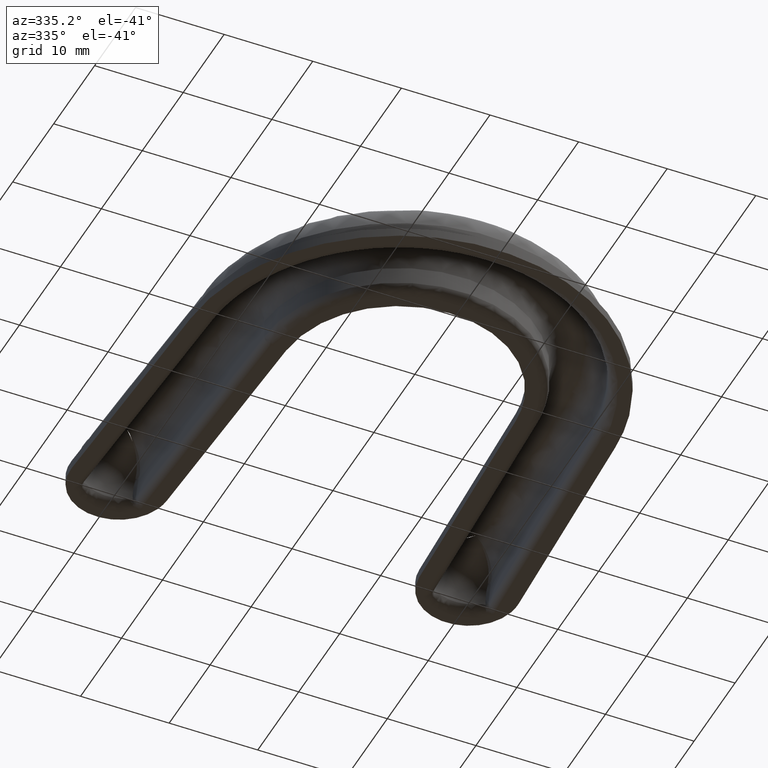
[diagram: clean part render]
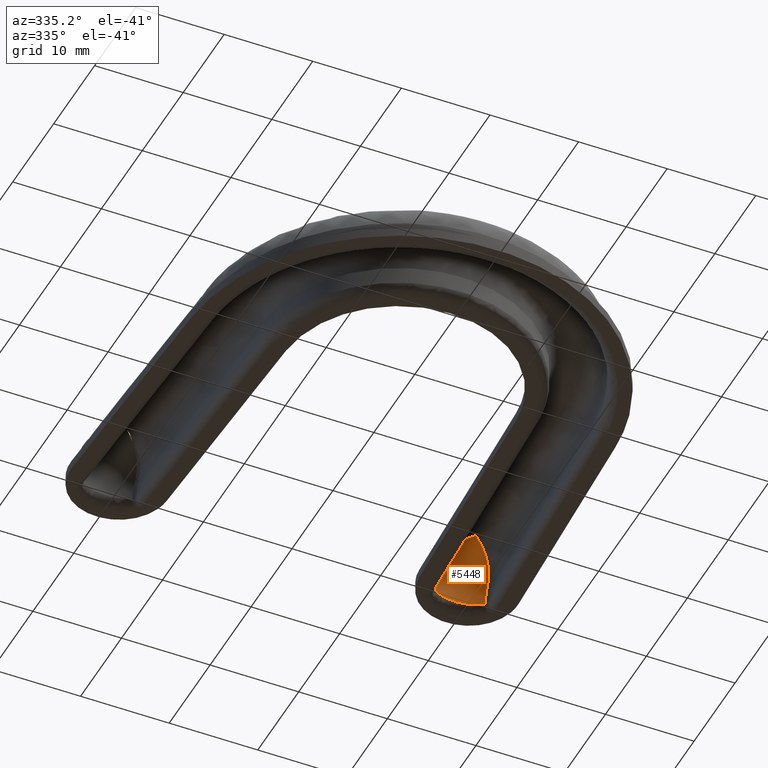
[diagram: same view with one face highlighted and labeled with its STEP entity id]
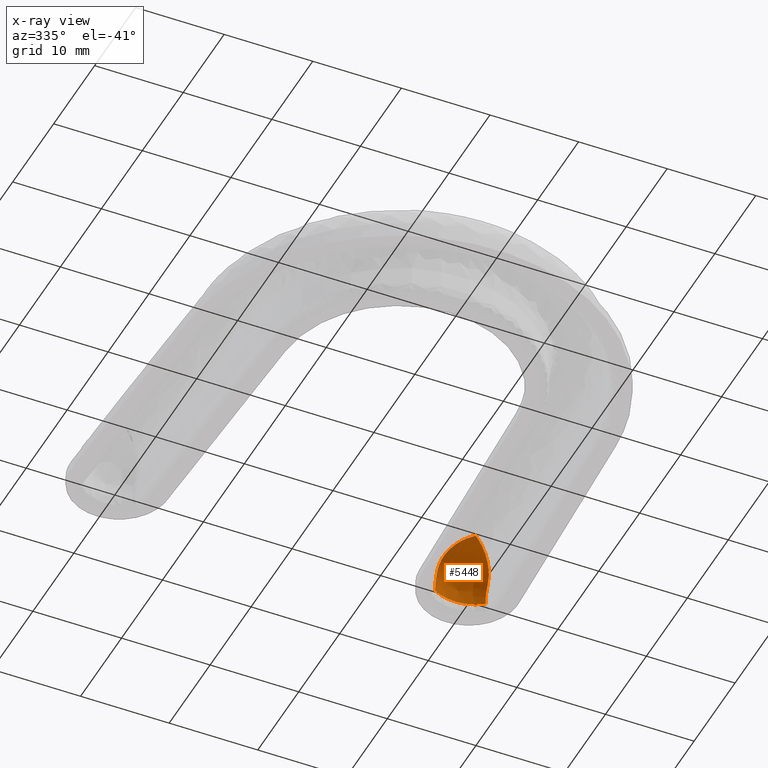
[diagram: x-ray of the same camera — body ghosted, the highlighted face saturated]
A machine part, auxiliary view. The second image highlights one B-rep face of the part: STEP entity #5448.
The next image is the same camera in x-ray: the body ghosted, the highlighted face saturated — about 5% of this face is hidden behind the body in this view.
In plain terms, the highlighted face is a freeform B-spline surface patch.
Its self-contained STEP definition (entity closure, byte-faithful):
#373=CARTESIAN_POINT('',(17.076787218034301,51.995188337450799,1.000000000000016));
#374=VERTEX_POINT('',#373);
#503=CARTESIAN_POINT('',(22.625344964215451,51.716061540061197,1.000000000000090));
#504=VERTEX_POINT('',#503);
#518=CARTESIAN_POINT('',(17.076787218034280,51.995188337450820,1.000000000000016));
#519=CARTESIAN_POINT('',(19.944316262237688,53.709276985422633,1.000000000000016));
#520=CARTESIAN_POINT('',(22.625344964215461,51.716061540061212,1.000000000000016));
#528=(BOUNDED_CURVE()B_SPLINE_CURVE(2,(#518,#519,#520),.UNSPECIFIED.,.F.,.U.)CURVE()GEOMETRIC_REPRESENTATION_ITEM()QUASI_UNIFORM_CURVE()RATIONAL_B_SPLINE_CURVE((1.0,0.831478172703721,1.0))REPRESENTATION_ITEM(''));
#529=EDGE_CURVE('',#374,#504,#528,.T.);
#777=CARTESIAN_POINT('',(22.594604190664551,51.071713526645397,3.222222222222310));
#778=VERTEX_POINT('',#777);
#779=CARTESIAN_POINT('',(22.625344964215440,51.716061540061261,1.000000000000090));
#780=CARTESIAN_POINT('',(22.625344964215444,51.716061540061261,2.204740216560281));
#781=CARTESIAN_POINT('',(22.594604190664558,51.071713526645418,3.222222222222321));
#789=(BOUNDED_CURVE()B_SPLINE_CURVE(2,(#779,#780,#781),.UNSPECIFIED.,.F.,.U.)CURVE()GEOMETRIC_REPRESENTATION_ITEM()QUASI_UNIFORM_CURVE()RATIONAL_B_SPLINE_CURVE((1.0,0.960355529296843,1.0))REPRESENTATION_ITEM(''));
#790=EDGE_CURVE('',#504,#778,#789,.T.);
#972=CARTESIAN_POINT('',(19.686002005519502,47.703745122869101,5.999807996171170));
#973=VERTEX_POINT('',#972);
#1017=CARTESIAN_POINT('',(22.594604190664551,51.071713526645397,3.222222222222310));
#1018=CARTESIAN_POINT('',(22.588647958683431,50.945949044137137,3.420798542898796));
#1019=CARTESIAN_POINT('',(22.561518432702599,50.818657758321173,3.612838725436235));
#1020=CARTESIAN_POINT('',(22.470516829497999,50.558729296291979,3.983663647226608));
#1021=CARTESIAN_POINT('',(22.406585792828480,50.426110950992097,4.162446563121524));
#1022=CARTESIAN_POINT('',(22.304788164813019,50.255422299841413,4.376801609089628));
#1023=CARTESIAN_POINT('',(22.283274333910349,50.220960453943398,4.419304191007422));
#1024=CARTESIAN_POINT('',(22.238461333982151,50.152118306280947,4.502614027009768));
#1025=CARTESIAN_POINT('',(22.215137027656919,50.117688549412023,4.543486974541573));
#1026=CARTESIAN_POINT('',(22.142524322684810,50.014313050216678,4.663795610192365));
#1027=CARTESIAN_POINT('',(22.090600937463520,49.945280648691927,4.740924705572319));
#1028=CARTESIAN_POINT('',(21.924995116510871,49.737381846924812,4.963225127038033));
#1029=CARTESIAN_POINT('',(21.801529436376640,49.597720101951317,5.099359994038887));
#1030=CARTESIAN_POINT('',(21.598385272174468,49.384833320584129,5.285055792105980));
#1031=CARTESIAN_POINT('',(21.527665310860520,49.313304667267388,5.343857229165242));
#1032=CARTESIAN_POINT('',(21.380336775682132,49.168784347174302,5.455039006036457));
#1033=CARTESIAN_POINT('',(21.304621285070361,49.096667915152793,5.506741470876728));
#1034=CARTESIAN_POINT('',(21.072221005868720,48.880583497712109,5.650286069980879));
#1035=CARTESIAN_POINT('',(20.910167935661899,48.736741638469859,5.730727814178176));
#1036=CARTESIAN_POINT('',(20.658084813406319,48.519530310391971,5.828752673699703));
#1037=CARTESIAN_POINT('',(20.572548978069861,48.446886209753821,5.857640203914842));
#1038=CARTESIAN_POINT('',(20.398670260275320,48.300813184575361,5.907709032057699));
#1039=CARTESIAN_POINT('',(20.310111653748429,48.227208601870188,5.928928593132417));
#1040=CARTESIAN_POINT('',(20.131444081618280,48.079760958074317,5.963217481964888));
#1041=CARTESIAN_POINT('',(20.041520226014448,48.006083869807540,5.976272898933130));
#1042=CARTESIAN_POINT('',(19.906023246958299,47.895305915789642,5.989731207299720));
#1043=CARTESIAN_POINT('',(19.860733162494370,47.858342521317823,5.993196156435945));
#1044=CARTESIAN_POINT('',(19.792839813920740,47.802661987891057,5.996851070899024));
#1045=CARTESIAN_POINT('',(19.770206694855901,47.784091889902093,5.997811968294776));
#1046=CARTESIAN_POINT('',(19.736511829992612,47.755911875312222,5.998865746656302));
#1047=CARTESIAN_POINT('',(19.725297215982270,47.746486088121408,5.999152637702569));
#1048=CARTESIAN_POINT('',(19.708867823391909,47.731899339952967,5.999483793845512));
#1049=CARTESIAN_POINT('',(19.703444539105881,47.726983176470704,5.999577683780801));
#1050=CARTESIAN_POINT('',(19.695777566333941,47.719136502007942,5.999691072949282));
#1051=CARTESIAN_POINT('',(19.693294867589032,47.716447283176080,5.999724350559156));
#1052=CARTESIAN_POINT('',(19.688831017603860,47.710562797249743,5.999779050581000));
#1053=CARTESIAN_POINT('',(19.686821877722029,47.707378999529752,5.999800609184135));
#1054=CARTESIAN_POINT('',(19.686002005519502,47.703745122869101,5.999807996171170));
#1055=B_SPLINE_CURVE_WITH_KNOTS('',3,(#1017,#1018,#1019,#1020,#1021,#1022,#1023,#1024,#1025,#1026,#1027,#1028,#1029,#1030,#1031,#1032,#1033,#1034,#1035,#1036,#1037,#1038,#1039,#1040,#1041,#1042,#1043,#1044,#1045,#1046,#1047,#1048,#1049,#1050,#1051,#1052,#1053,#1054),.UNSPECIFIED.,.F.,.U.,(4,2,2,2,2,2,2,2,2,2,2,2,2,2,2,2,2,2,4),(0.0,0.124999999999998,0.249999999999996,0.281249999999997,0.312499999999998,0.375000000000000,0.500000000000001,0.562500000000002,0.625000000000003,0.750000000000005,0.812500000000004,0.875000000000003,0.937500000000003,0.968750000000002,0.984375000000002,0.992187500000001,0.996093749999999,0.998046875000000,1.0),.UNSPECIFIED.);
#1056=EDGE_CURVE('',#778,#973,#1055,.T.);
#1095=CARTESIAN_POINT('',(17.046172155190249,51.353475307961901,3.222222222222305));
#1096=VERTEX_POINT('',#1095);
#1097=CARTESIAN_POINT('',(17.046172155190270,51.353475307961887,3.222222222222298));
#1098=CARTESIAN_POINT('',(17.076787218034323,51.995188337450827,2.203976012326178));
#1099=CARTESIAN_POINT('',(17.076787218034319,51.995188337450827,1.000000000000090));
#1107=(BOUNDED_CURVE()B_SPLINE_CURVE(2,(#1097,#1098,#1099),.UNSPECIFIED.,.F.,.U.)CURVE()GEOMETRIC_REPRESENTATION_ITEM()QUASI_UNIFORM_CURVE()RATIONAL_B_SPLINE_CURVE((1.0,0.960660265990990,1.0))REPRESENTATION_ITEM(''));
#1108=EDGE_CURVE('',#1096,#374,#1107,.T.);
#1254=CARTESIAN_POINT('',(19.648458390992950,47.703484692415003,5.999995736897100));
#1255=VERTEX_POINT('',#1254);
#1256=CARTESIAN_POINT('',(19.648458390992950,47.703484692415003,5.999995736897100));
#1257=CARTESIAN_POINT('',(19.648560137035240,47.707250152354142,5.999995610019038));
#1258=CARTESIAN_POINT('',(19.647142107628500,47.710830151884188,5.999993160415908));
#1259=CARTESIAN_POINT('',(19.643547058830961,47.717319990394913,5.999981627532886));
#1260=CARTESIAN_POINT('',(19.641382337219088,47.720285644322708,5.999972583697256));
#1261=CARTESIAN_POINT('',(19.634605162424059,47.728958724448873,5.999934142098423));
#1262=CARTESIAN_POINT('',(19.629670252230131,47.734411072436536,5.999893409116279));
#1263=CARTESIAN_POINT('',(19.614680367623411,47.750621409262287,5.999722829568068));
#1264=CARTESIAN_POINT('',(19.604361906845622,47.761126787032310,5.999545131374836));
#1265=CARTESIAN_POINT('',(19.573352949187800,47.792552378229288,5.998817636264273));
#1266=CARTESIAN_POINT('',(19.552498348924519,47.813269377825691,5.998074108954963));
#1267=CARTESIAN_POINT('',(19.489999375105700,47.875329349174287,5.995070306183097));
#1268=CARTESIAN_POINT('',(19.448331197811459,47.916493074025091,5.992037386833174));
#1269=CARTESIAN_POINT('',(19.323729717370419,48.039769320746217,5.979875141383716));
#1270=CARTESIAN_POINT('',(19.241142517206789,48.121610957421112,5.967686309641256));
#1271=CARTESIAN_POINT('',(19.077326608991640,48.285018122179999,5.935210333109619));
#1272=CARTESIAN_POINT('',(18.996087851603679,48.366573653375298,5.914923282644924));
#1273=CARTESIAN_POINT('',(18.875460494477171,48.488902435450477,5.878376060367591));
#1274=CARTESIAN_POINT('',(18.835456525388761,48.529677773493113,5.865173266638035));
#1275=CARTESIAN_POINT('',(18.755898672731430,48.611262442985662,5.836707956267621));
#1276=CARTESIAN_POINT('',(18.716278537473819,48.652140906758000,5.821416647551237));
#1277=CARTESIAN_POINT('',(18.520416363594759,48.855659635257183,5.740173809720107));
#1278=CARTESIAN_POINT('',(18.370795524119810,49.015738524368821,5.659994716853681));
#1279=CARTESIAN_POINT('',(18.087637501870830,49.332725269085223,5.470227898627607));
#1280=CARTESIAN_POINT('',(17.954079559688779,49.489618093713062,5.360645942656356));
#1281=CARTESIAN_POINT('',(17.768100713579489,49.724199992295311,5.173509603004709));
#1282=CARTESIAN_POINT('',(17.708956506083581,49.801725452998149,5.107736735023400));
#1283=CARTESIAN_POINT('',(17.597416308574850,49.954667683518259,4.970464847821310));
#1284=CARTESIAN_POINT('',(17.544884102743818,50.030254178177231,4.898831003261917));
#1285=CARTESIAN_POINT('',(17.446591917766550,50.179942566715383,4.749659802391748));
#1286=CARTESIAN_POINT('',(17.400830918293568,50.254043990134470,4.672122639247201));
#1287=CARTESIAN_POINT('',(17.316512650661011,50.401027424177542,4.511129540490495));
#1288=CARTESIAN_POINT('',(17.277908428369170,50.474004039242509,4.427560359319791));
#1289=CARTESIAN_POINT('',(17.174095756342510,50.690901372898423,4.168485413858115));
#1290=CARTESIAN_POINT('',(17.122269615658180,50.829674731572347,3.988449800018692));
#1291=CARTESIAN_POINT('',(17.055337064765229,51.098038071506998,3.615173454349281));
#1292=CARTESIAN_POINT('',(17.040170895801669,51.227614354644061,3.421933510939124));
#1293=CARTESIAN_POINT('',(17.046172155190249,51.353475307961901,3.222222222222305));
#1294=B_SPLINE_CURVE_WITH_KNOTS('',3,(#1256,#1257,#1258,#1259,#1260,#1261,#1262,#1263,#1264,#1265,#1266,#1267,#1268,#1269,#1270,#1271,#1272,#1273,#1274,#1275,#1276,#1277,#1278,#1279,#1280,#1281,#1282,#1283,#1284,#1285,#1286,#1287,#1288,#1289,#1290,#1291,#1292,#1293),.UNSPECIFIED.,.F.,.U.,(4,2,2,2,2,2,2,2,2,2,2,2,2,2,2,2,2,2,4),(0.000009310208836,0.001953124999999,0.003906249999997,0.007812499999995,0.015624999999993,0.031249999999993,0.062499999999992,0.124999999999991,0.187499999999990,0.218749999999989,0.249999999999988,0.374999999999991,0.499999999999994,0.562499999999994,0.624999999999995,0.687499999999996,0.749999999999997,0.874999999999998,1.0),.UNSPECIFIED.);
#1295=EDGE_CURVE('',#1255,#1096,#1294,.T.);
#5407=CARTESIAN_POINT('',(17.716114153157626,47.208587584225349,5.587517564170527));
#5408=CARTESIAN_POINT('',(18.645264365999282,47.471110446351595,6.005942880021972));
#5409=CARTESIAN_POINT('',(20.740535575150531,47.373634573389154,5.977726978954813));
#5410=CARTESIAN_POINT('',(21.625752292253843,47.030410633664616,5.540092836820328));
#5411=CARTESIAN_POINT('',(16.760939897197996,50.638654157309873,5.556519127095951));
#5412=CARTESIAN_POINT('',(18.166392274272908,51.473427160923777,6.236654167191552));
#5413=CARTESIAN_POINT('',(21.590540923139471,51.314129463688381,6.190542981635387));
#5414=CARTESIAN_POINT('',(22.889621654201420,50.364006492950843,5.482118345344035));
#5415=CARTESIAN_POINT('',(16.760939897197996,51.860712719797846,1.334742728524917));
#5416=CARTESIAN_POINT('',(18.166392274272908,52.840046057709692,1.515473381431388));
#5417=CARTESIAN_POINT('',(21.590540923139471,52.680748360474283,1.469362195875224));
#5418=CARTESIAN_POINT('',(22.889621654201420,51.587746462690028,1.254533284514518));
#5419=CARTESIAN_POINT('',(16.840651869390516,51.815271701753595,0.505425059458911));
#5420=CARTESIAN_POINT('',(18.207917941926990,52.756452675410060,0.585272934425304));
#5421=CARTESIAN_POINT('',(21.516832222643810,52.602515893067974,0.540713548711112));
#5422=CARTESIAN_POINT('',(22.784100076144259,51.550499695322934,0.426534725447079));
#5430=(BOUNDED_SURFACE()B_SPLINE_SURFACE(2,2,((#5407,#5411,#5415,#5419),(#5408,#5412,#5416,#5420),(#5409,#5413,#5417,#5421),(#5410,#5414,#5418,#5422)),.UNSPECIFIED.,.F.,.F.,.U.)B_SPLINE_SURFACE_WITH_KNOTS((3,1,3),(3,1,3),(0.0,3.313790114947483,6.605988161175834),(0.0,7.673063226872309,9.471083935610080),.UNSPECIFIED.)GEOMETRIC_REPRESENTATION_ITEM()RATIONAL_B_SPLINE_SURFACE(((1.752519413228397,1.118292476919944,1.118292476919944,1.153117908579294),(1.634226936308452,1.0,1.0,1.034825431659350),(1.634226936308452,1.0,1.0,1.034825431659350),(1.750982889844203,1.116755953535751,1.116755953535751,1.151581385195100)))REPRESENTATION_ITEM('')SURFACE());
#5431=ORIENTED_EDGE('',*,*,#1108,.T.);
#5432=ORIENTED_EDGE('',*,*,#529,.T.);
#5433=ORIENTED_EDGE('',*,*,#790,.T.);
#5434=ORIENTED_EDGE('',*,*,#1056,.T.);
#5435=CARTESIAN_POINT('',(19.648458390992950,47.703484692415003,5.999995736897100));
#5436=CARTESIAN_POINT('',(19.652264866145199,47.703511095823750,5.999994464919872));
#5437=CARTESIAN_POINT('',(19.659877825365768,47.703563902703053,5.999991920962438));
#5438=CARTESIAN_POINT('',(19.671297147388898,47.703643109891651,5.999937963818194));
#5439=CARTESIAN_POINT('',(19.680005183907092,47.703703516979459,5.999870217566383));
#5440=CARTESIAN_POINT('',(19.684906720211242,47.703737523761667,5.999819431168911));
#5441=CARTESIAN_POINT('',(19.686002005519502,47.703745122869101,5.999807996171170));
#5442=B_SPLINE_CURVE_WITH_KNOTS('',3,(#5435,#5436,#5437,#5438,#5439,#5440,#5441),.UNSPECIFIED.,.F.,.U.,(4,1,1,1,4),(0.0,0.299999487226004,0.599999677155442,0.899999159032197,0.986326987488544),.UNSPECIFIED.);
#5443=EDGE_CURVE('',#1255,#973,#5442,.T.);
#5444=ORIENTED_EDGE('',*,*,#5443,.F.);
#5445=ORIENTED_EDGE('',*,*,#1295,.T.);
#5446=EDGE_LOOP('',(#5431,#5432,#5433,#5434,#5444,#5445));
#5447=FACE_OUTER_BOUND('',#5446,.T.);
#5448=ADVANCED_FACE('',(#5447),#5430,.F.);